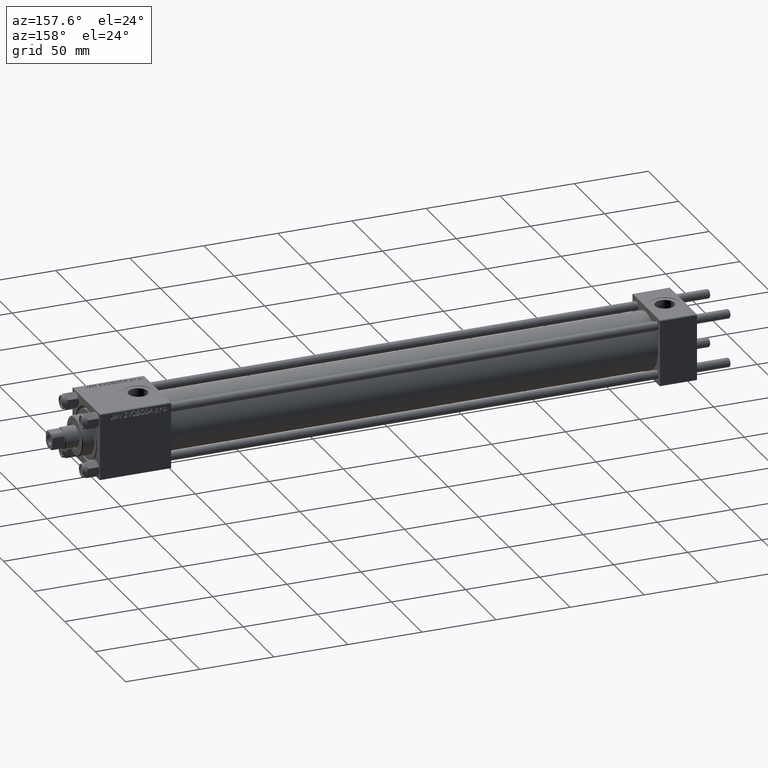
[diagram: clean part render]
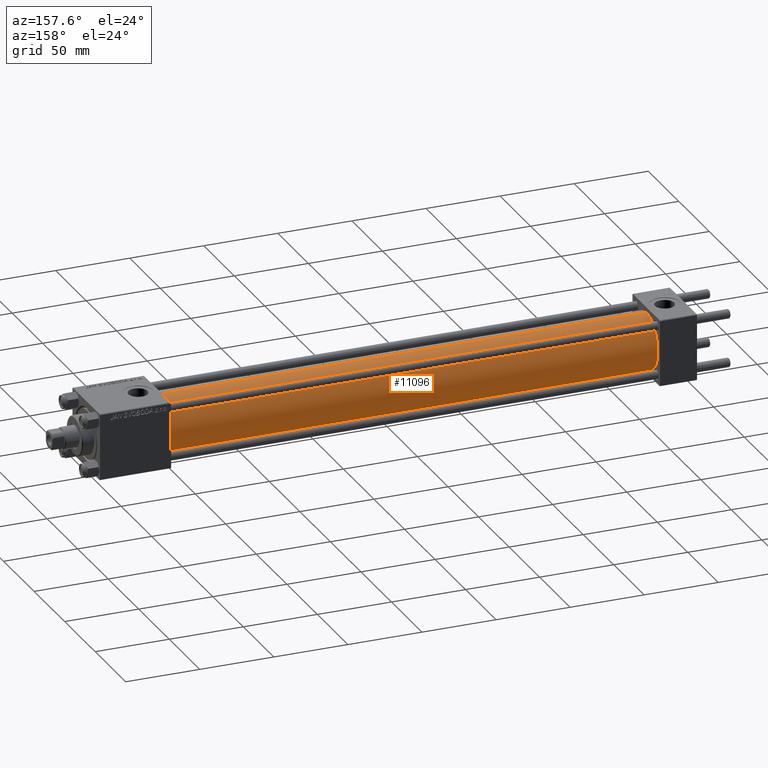
[diagram: same view with one face highlighted and labeled with its STEP entity id]
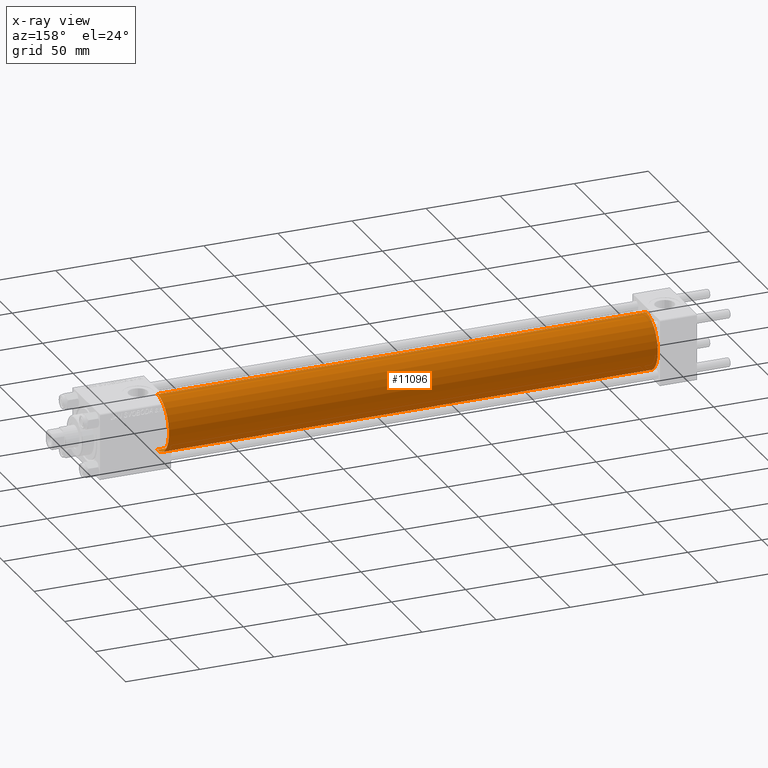
[diagram: x-ray of the same camera — body ghosted, the highlighted face saturated]
A machine part, auxiliary view. The second image highlights one B-rep face of the part: STEP entity #11096.
The next image is the same camera in x-ray: the body ghosted, the highlighted face saturated — about 0% of this face is hidden behind the body in this view.
In plain terms, the highlighted cylindrical surface (edge-blend (fillet) strip) has radius 19 mm, axis along (-1, -0, -0).
Its self-contained STEP definition (entity closure, byte-faithful):
#449 = DIRECTION ( 'NONE',  ( 1.000000000000000000, 0.000000000000000000, 0.000000000000000000 ) ) ;
#2751 = FACE_OUTER_BOUND ( 'NONE', #33617, .T. ) ;
#2879 = DIRECTION ( 'NONE',  ( 1.000000000000000000, -0.000000000000000000, 0.000000000000000000 ) ) ;
#4864 = ORIENTED_EDGE ( 'NONE', *, *, #11394, .T. ) ;
#5829 = DIRECTION ( 'NONE',  ( -1.000000000000000000, -0.000000000000000000, -0.000000000000000000 ) ) ;
#6333 = LINE ( 'NONE', #26019, #26829 ) ;
#6600 = ORIENTED_EDGE ( 'NONE', *, *, #37979, .F. ) ;
#7010 = DIRECTION ( 'NONE',  ( 0.000000000000000000, 0.000000000000000000, -1.000000000000000000 ) ) ;
#7447 = CARTESIAN_POINT ( 'NONE',  ( 25.00000000000002132, 0.000000000000000000, 19.00000000000000000 ) ) ;
#8525 = AXIS2_PLACEMENT_3D ( 'NONE', #29990, #37567, #18160 ) ;
#9914 = DIRECTION ( 'NONE',  ( -1.000000000000000000, -0.000000000000000000, -0.000000000000000000 ) ) ;
#11096 = ADVANCED_FACE ( 'NONE', ( #2751 ), #41356, .T. ) ;
#11394 = EDGE_CURVE ( 'NONE', #25122, #41868, #33526, .T. ) ;
#11772 = AXIS2_PLACEMENT_3D ( 'NONE', #37444, #2879, #18282 ) ;
#14124 = VERTEX_POINT ( 'NONE', #35847 ) ;
#14757 = EDGE_CURVE ( 'NONE', #14124, #25122, #44721, .T. ) ;
#15934 = CIRCLE ( 'NONE', #22372, 19.00000000000000000 ) ;
#18160 = DIRECTION ( 'NONE',  ( 0.000000000000000000, 0.000000000000000000, 1.000000000000000000 ) ) ;
#18282 = DIRECTION ( 'NONE',  ( 0.000000000000000000, 0.000000000000000000, 1.000000000000000000 ) ) ;
#22372 = AXIS2_PLACEMENT_3D ( 'NONE', #45853, #449, #7010 ) ;
#25122 = VERTEX_POINT ( 'NONE', #33255 ) ;
#26019 = CARTESIAN_POINT ( 'NONE',  ( 355.0000000000000568, 0.000000000000000000, 19.00000000000000000 ) ) ;
#26829 = VECTOR ( 'NONE', #5829, 1000.000000000000000 ) ;
#27193 = VECTOR ( 'NONE', #9914, 1000.000000000000000 ) ;
#29990 = CARTESIAN_POINT ( 'NONE',  ( 355.0000000000000568, 0.000000000000000000, 0.000000000000000000 ) ) ;
#33255 = CARTESIAN_POINT ( 'NONE',  ( 25.00000000000002132, 2.326828918379970970E-15, -19.00000000000000000 ) ) ;
#33526 = CIRCLE ( 'NONE', #11772, 19.00000000000000000 ) ;
#33617 = EDGE_LOOP ( 'NONE', ( #6600, #35837, #4864, #49558 ) ) ;
#35837 = ORIENTED_EDGE ( 'NONE', *, *, #14757, .T. ) ;
#35847 = CARTESIAN_POINT ( 'NONE',  ( 355.0000000000000568, 2.326828918379970970E-15, -19.00000000000000000 ) ) ;
#37444 = CARTESIAN_POINT ( 'NONE',  ( 25.00000000000002132, 0.000000000000000000, 0.000000000000000000 ) ) ;
#37567 = DIRECTION ( 'NONE',  ( -1.000000000000000000, -0.000000000000000000, -0.000000000000000000 ) ) ;
#37979 = EDGE_CURVE ( 'NONE', #14124, #48420, #15934, .T. ) ;
#40452 = CARTESIAN_POINT ( 'NONE',  ( 355.0000000000000568, 2.326828918379970970E-15, -19.00000000000000000 ) ) ;
#41356 = CYLINDRICAL_SURFACE ( 'NONE', #8525, 19.00000000000000000 ) ;
#41868 = VERTEX_POINT ( 'NONE', #7447 ) ;
#44721 = LINE ( 'NONE', #40452, #27193 ) ;
#45849 = CARTESIAN_POINT ( 'NONE',  ( 355.0000000000000568, 0.000000000000000000, 19.00000000000000000 ) ) ;
#45853 = CARTESIAN_POINT ( 'NONE',  ( 355.0000000000000568, 0.000000000000000000, 0.000000000000000000 ) ) ;
#48420 = VERTEX_POINT ( 'NONE', #45849 ) ;
#49558 = ORIENTED_EDGE ( 'NONE', *, *, #49624, .F. ) ;
#49624 = EDGE_CURVE ( 'NONE', #48420, #41868, #6333, .T. ) ;